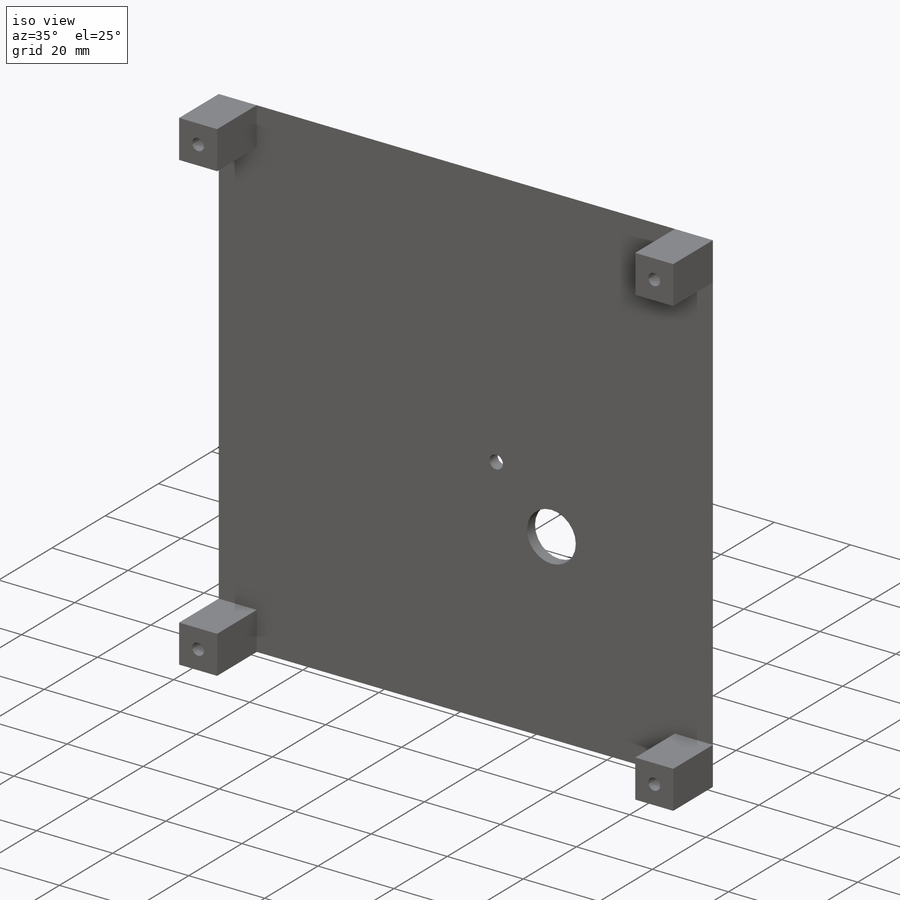
[diagram: iso view]
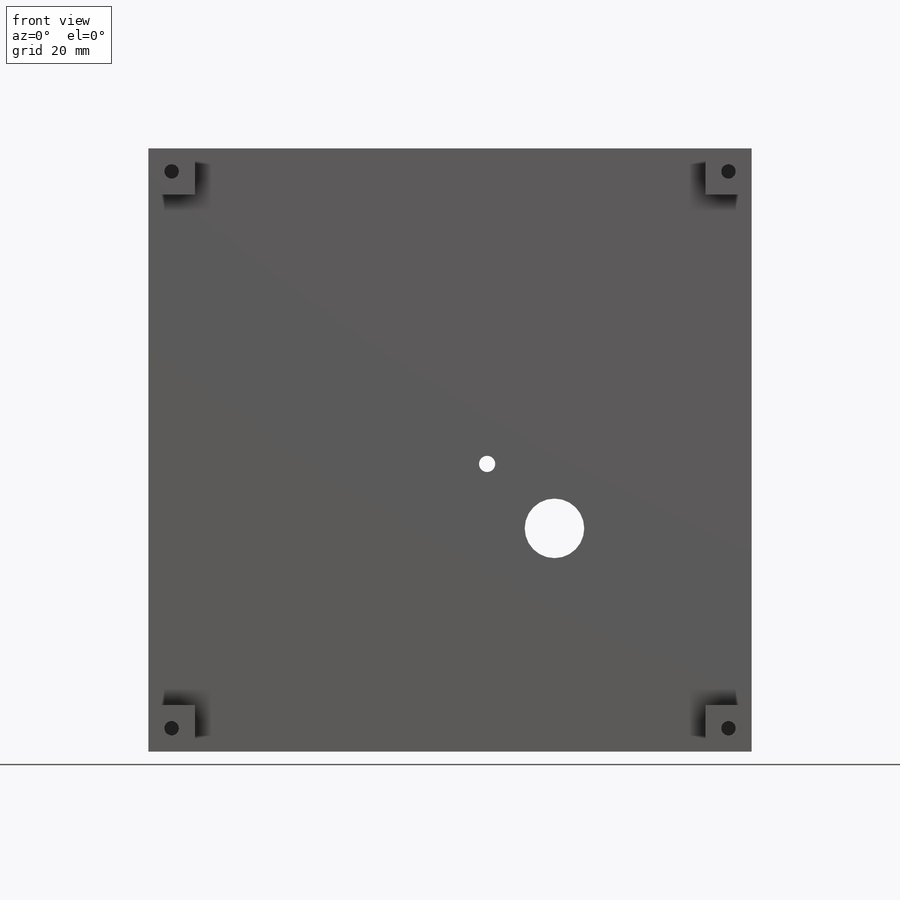
[diagram: front view]
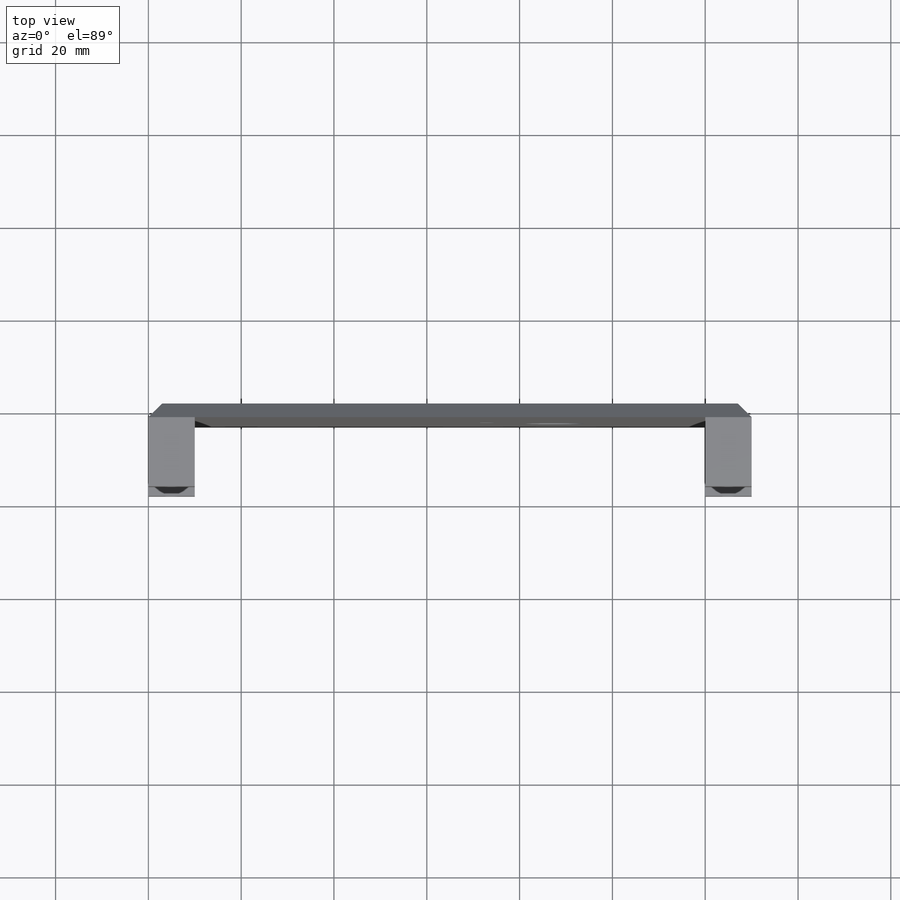
[diagram: top view]
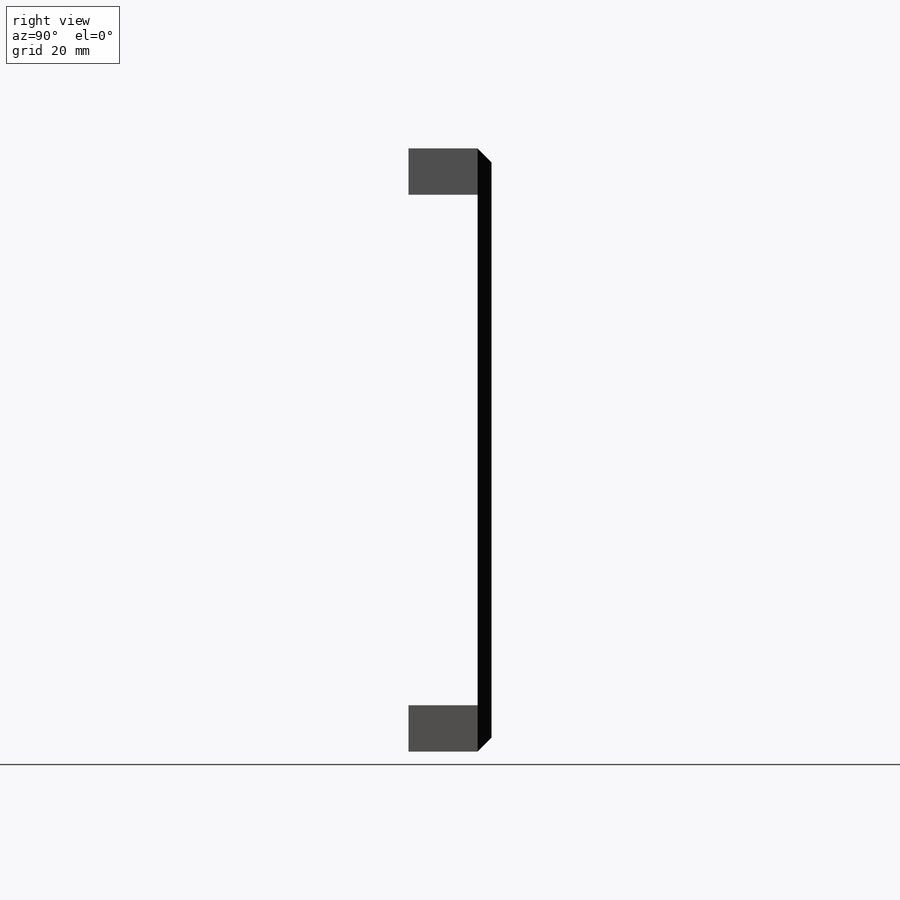
[diagram: right view]
SOLIDWORKS PART (.sldprt)
format: sldprt  version: not decoded by parser v0  size: 211,456 bytes
history: native  units: mm
features: plane x3, sketch x3, extrude x2, material x1, chamfer x1, cut_extrude x1 (+9 scaffold rows collapsed)
feature tree (20):
  scaffold x9  (default folders/planes/origin — collapsed)
  material  "Matériau <non spécifié>"
  plane  "Plan de face"
  plane  "Plan de dessus"
  plane  "Plan de droite"
  sketch  "Esquisse1"  dims[D1=130.0mm D2=130.0mm]
  extrude  "Boss.-Extru.1"  Depth=3mm
  chamfer  "Chanfrein1"  Distance=3mm Angle=45deg
  sketch  "Esquisse2"  dims[D9=3.1mm D10=3.1mm D11=3.1mm D12=3.1mm D1=10.0mm D2=10.0mm D3=10.0mm D4=10.0mm D5=10.0mm D6=10.0mm D7=10.0mm D8=10.0mm]
  extrude  "Boss.-Extru.2"  Depth=14.9mm
  sketch  "Esquisse3"  dims[D1=3.5mm D2=57.0mm D3=62.0mm]
  cut_extrude  "Enlèv. mat.-Extru.1"  Depth=14.9mm
decode coverage: 7 of 7 modeling features carry decoded parameters
note: suppression state not decoded; provenance and decode notes live in map.json
